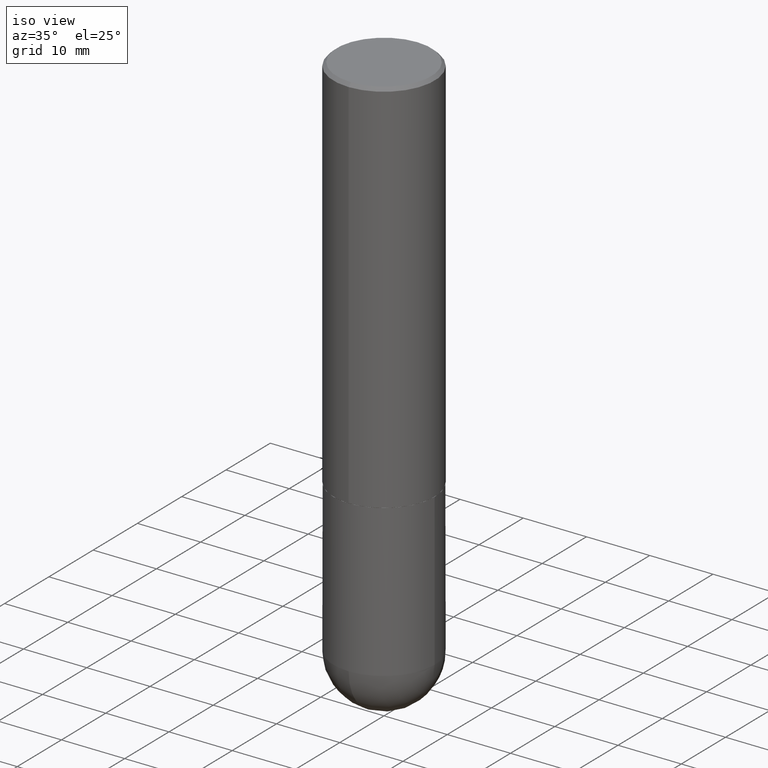
[diagram: clean part render]
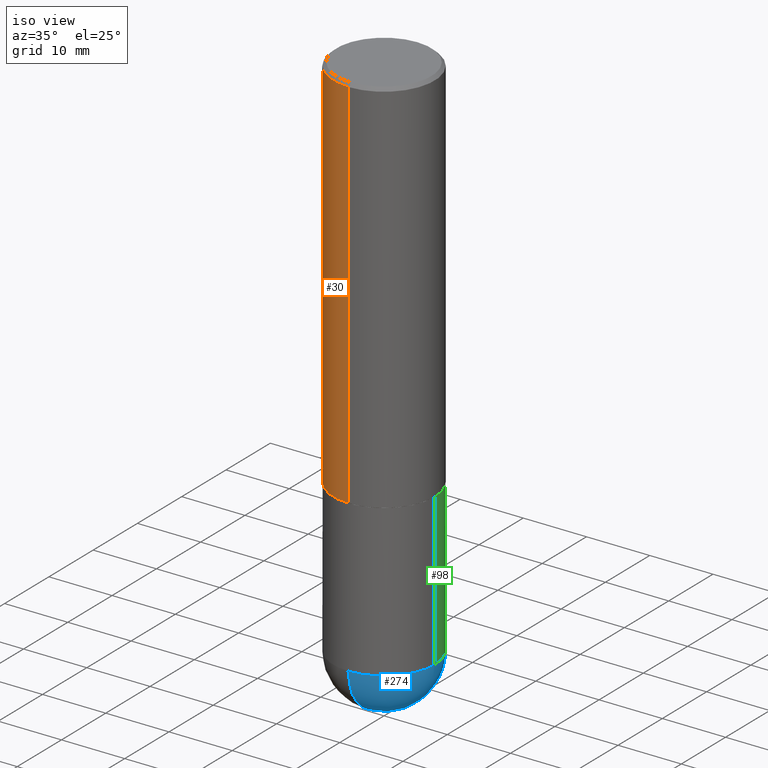
[diagram: same view with three faces highlighted in distinct colors, each labeled with its STEP entity id]
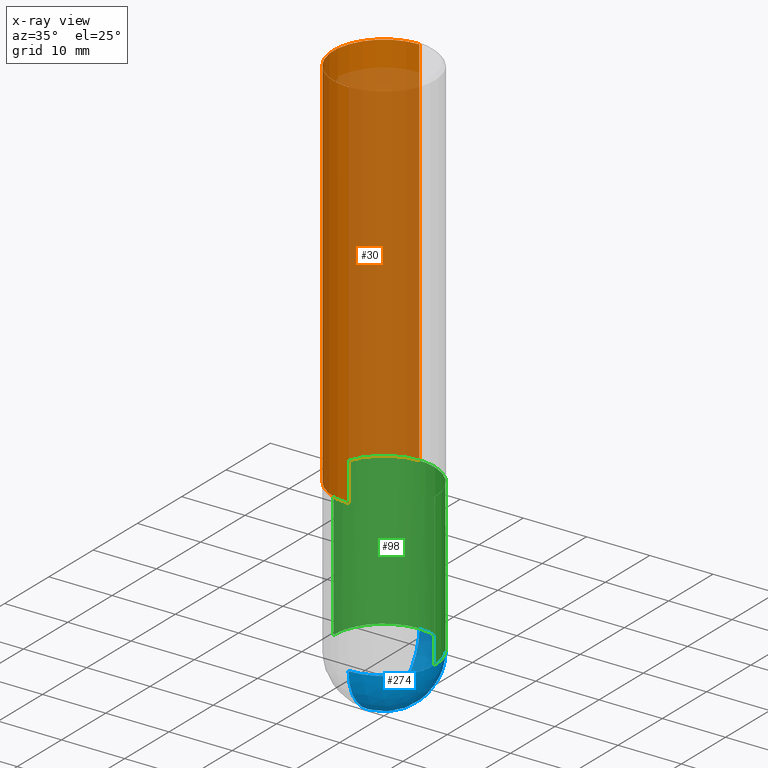
[diagram: x-ray of the same camera — body ghosted, the three highlighted faces saturated]
A machine part, iso view with three faces highlighted in distinct colors.
The next image is the same camera in x-ray (body ghosted, the three faces saturated) — at least one of them is partly hidden behind the body in this view.
Their STEP definitions:

[orange] entity #30 — the highlighted cylindrical surface (partial cylindrical patch) has radius 7.9997 mm, axis along (-0, 0, 1).
#8 = CARTESIAN_POINT ( 'NONE',  ( -2.199284095337290265E-15, -0.3149500000000001743, 1.099513928764781355E-15 ) ) ;
#14 = VERTEX_POINT ( 'NONE', #22 ) ;
#21 = DIRECTION ( 'NONE',  ( -2.445752866996063776E-29, 3.491074547594160525E-15, 1.000000000000000000 ) ) ;
#22 = CARTESIAN_POINT ( 'NONE',  ( -2.160713844398143363E-15, -0.3149500000000000632, -0.01999999999999896999 ) ) ;
#30 = ADVANCED_FACE ( 'NONE', ( #115 ), #253, .T. ) ;
#60 = AXIS2_PLACEMENT_3D ( 'NONE', #246, #354, #79 ) ;
#72 = DIRECTION ( 'NONE',  ( -2.445752866996063776E-29, 3.491074547594160525E-15, 1.000000000000000000 ) ) ;
#79 = DIRECTION ( 'NONE',  ( -6.982962677686264344E-15, -1.000000000000000000, 3.491074547594160130E-15 ) ) ;
#88 = CIRCLE ( 'NONE', #126, 0.3149500000000002853 ) ;
#90 = CARTESIAN_POINT ( 'NONE',  ( -2.199284095337233467E-15, -0.3149500000000085564, -2.361199999999998411 ) ) ;
#96 = VECTOR ( 'NONE', #21, 39.37007874015748143 ) ;
#105 = VECTOR ( 'NONE', #129, 39.37007874015748143 ) ;
#114 = CIRCLE ( 'NONE', #266, 0.3149500000000000077 ) ;
#115 = FACE_OUTER_BOUND ( 'NONE', #312, .T. ) ;
#124 = EDGE_CURVE ( 'NONE', #136, #280, #88, .T. ) ;
#126 = AXIS2_PLACEMENT_3D ( 'NONE', #375, #72, #202 ) ;
#129 = DIRECTION ( 'NONE',  ( -2.445752866996063776E-29, 3.491074547594160525E-15, 1.000000000000000000 ) ) ;
#136 = VERTEX_POINT ( 'NONE', #195 ) ;
#138 = EDGE_CURVE ( 'NONE', #280, #14, #315, .T. ) ;
#171 = ORIENTED_EDGE ( 'NONE', *, *, #335, .F. ) ;
#172 = EDGE_CURVE ( 'NONE', #190, #14, #114, .T. ) ;
#174 = LINE ( 'NONE', #301, #96 ) ;
#188 = ORIENTED_EDGE ( 'NONE', *, *, #172, .F. ) ;
#190 = VERTEX_POINT ( 'NONE', #252 ) ;
#195 = CARTESIAN_POINT ( 'NONE',  ( 2.237854346276465567E-15, 0.3149499999999920141, -2.361200000000000632 ) ) ;
#202 = DIRECTION ( 'NONE',  ( -6.982962677686265922E-15, -1.000000000000000000, 3.469564049740290009E-15 ) ) ;
#205 = DIRECTION ( 'NONE',  ( -2.445752866996063776E-29, 3.491074547594160525E-15, 1.000000000000000000 ) ) ;
#216 = CARTESIAN_POINT ( 'NONE',  ( 4.891505733992145558E-31, -6.982149095188345750E-17, -0.02000000000000007327 ) ) ;
#246 = CARTESIAN_POINT ( 'NONE',  ( 0.000000000000000000, 0.000000000000000000, 0.000000000000000000 ) ) ;
#252 = CARTESIAN_POINT ( 'NONE',  ( 2.199284095337289871E-15, 0.3149499999999999522, -0.02000000000000117309 ) ) ;
#253 = CYLINDRICAL_SURFACE ( 'NONE', #60, 0.3149500000000001743 ) ;
#266 = AXIS2_PLACEMENT_3D ( 'NONE', #216, #205, #299 ) ;
#280 = VERTEX_POINT ( 'NONE', #90 ) ;
#299 = DIRECTION ( 'NONE',  ( -6.982962677686265922E-15, -1.000000000000000000, 3.496670018878889100E-15 ) ) ;
#301 = CARTESIAN_POINT ( 'NONE',  ( 2.237854346276435985E-15, 0.3149500000000001743, -1.099513928764781355E-15 ) ) ;
#312 = EDGE_LOOP ( 'NONE', ( #171, #407, #313, #188 ) ) ;
#313 = ORIENTED_EDGE ( 'NONE', *, *, #138, .T. ) ;
#315 = LINE ( 'NONE', #8, #105 ) ;
#335 = EDGE_CURVE ( 'NONE', #136, #190, #174, .T. ) ;
#354 = DIRECTION ( 'NONE',  ( -2.445752866996063776E-29, 3.491074547594160525E-15, 1.000000000000000000 ) ) ;
#375 = CARTESIAN_POINT ( 'NONE',  ( 5.774911669551105250E-29, -8.243125221779329781E-15, -2.361199999999999743 ) ) ;
#407 = ORIENTED_EDGE ( 'NONE', *, *, #124, .T. ) ;

[blue] entity #274 — the highlighted spherical surface has radius 7.9997 mm.
#4 = DIRECTION ( 'NONE',  ( 1.000000000000000000, -6.982962677686269866E-15, 0.000000000000000000 ) ) ;
#7 = EDGE_CURVE ( 'NONE', #214, #158, #398, .T. ) ;
#17 = AXIS2_PLACEMENT_3D ( 'NONE', #180, #18, #208 ) ;
#18 = DIRECTION ( 'NONE',  ( -1.000000000000000000, 7.105427357601001070E-15, -4.926315508542082329E-29 ) ) ;
#29 = VERTEX_POINT ( 'NONE', #113 ) ;
#34 = DIRECTION ( 'NONE',  ( 1.000000000000000000, -6.982962677686269866E-15, 0.000000000000000000 ) ) ;
#55 = CARTESIAN_POINT ( 'NONE',  ( 8.539834969227531055E-29, -1.310104265196035002E-14, -3.621999999999999886 ) ) ;
#57 = DIRECTION ( 'NONE',  ( -1.000000000000000000, 6.982962677686265133E-15, -4.883557194083112901E-29 ) ) ;
#63 = ORIENTED_EDGE ( 'NONE', *, *, #277, .F. ) ;
#66 = CARTESIAN_POINT ( 'NONE',  ( 8.087287615494557476E-29, -1.154650336162122627E-14, -3.307050000000000267 ) ) ;
#101 = ORIENTED_EDGE ( 'NONE', *, *, #152, .F. ) ;
#107 = CARTESIAN_POINT ( 'NONE',  ( 2.199284095337369546E-15, 0.3149499999999882394, -3.307050000000001599 ) ) ;
#113 = CARTESIAN_POINT ( 'NONE',  ( 0.3149500000000000077, -1.209632438545554361E-14, -3.307050000000000267 ) ) ;
#125 = ORIENTED_EDGE ( 'NONE', *, *, #7, .T. ) ;
#150 = CIRCLE ( 'NONE', #17, 0.3149500000000001743 ) ;
#152 = EDGE_CURVE ( 'NONE', #233, #29, #260, .T. ) ;
#158 = VERTEX_POINT ( 'NONE', #107 ) ;
#162 = CARTESIAN_POINT ( 'NONE',  ( 8.087287615494557476E-29, -1.154650336162122627E-14, -3.307050000000000267 ) ) ;
#165 = CARTESIAN_POINT ( 'NONE',  ( 7.756167837580670108E-29, -1.202068572976127498E-14, -3.307049999999999823 ) ) ;
#170 = DIRECTION ( 'NONE',  ( -2.445468806185136597E-29, 3.491481338843145583E-15, 1.000000000000000000 ) ) ;
#178 = EDGE_CURVE ( 'NONE', #214, #233, #150, .T. ) ;
#180 = CARTESIAN_POINT ( 'NONE',  ( 7.756167837580670108E-29, -1.202068572976127498E-14, -3.307049999999999823 ) ) ;
#186 = CIRCLE ( 'NONE', #309, 0.3149500000000000077 ) ;
#208 = DIRECTION ( 'NONE',  ( -7.105427357600999492E-15, -1.000000000000000000, 0.000000000000000000 ) ) ;
#210 = AXIS2_PLACEMENT_3D ( 'NONE', #66, #170, #34 ) ;
#214 = VERTEX_POINT ( 'NONE', #55 ) ;
#225 = CARTESIAN_POINT ( 'NONE',  ( -2.237854346276355915E-15, -0.3149500000000118871, -3.307049999999999379 ) ) ;
#233 = VERTEX_POINT ( 'NONE', #225 ) ;
#260 = CIRCLE ( 'NONE', #210, 0.3149500000000000077 ) ;
#268 = EDGE_LOOP ( 'NONE', ( #342, #125, #63, #101 ) ) ;
#274 = ADVANCED_FACE ( 'NONE', ( #371 ), #340, .T. ) ;
#276 = DIRECTION ( 'NONE',  ( 1.000000000000000000, -6.982962677686265922E-15, 4.883557194083112340E-29 ) ) ;
#277 = EDGE_CURVE ( 'NONE', #29, #158, #186, .T. ) ;
#297 = AXIS2_PLACEMENT_3D ( 'NONE', #395, #276, #328 ) ;
#309 = AXIS2_PLACEMENT_3D ( 'NONE', #162, #343, #4 ) ;
#328 = DIRECTION ( 'NONE',  ( 6.982962677686264344E-15, 1.000000000000000000, 0.000000000000000000 ) ) ;
#340 = SPHERICAL_SURFACE ( 'NONE', #355, 0.3149500000000001743 ) ;
#342 = ORIENTED_EDGE ( 'NONE', *, *, #178, .F. ) ;
#343 = DIRECTION ( 'NONE',  ( -2.445468806185136597E-29, 3.491481338843145583E-15, 1.000000000000000000 ) ) ;
#355 = AXIS2_PLACEMENT_3D ( 'NONE', #165, #57, #380 ) ;
#371 = FACE_OUTER_BOUND ( 'NONE', #268, .T. ) ;
#380 = DIRECTION ( 'NONE',  ( 6.982962677686265133E-15, 1.000000000000000000, -3.469564049740291586E-15 ) ) ;
#395 = CARTESIAN_POINT ( 'NONE',  ( 7.756167837580670108E-29, -1.202068572976127498E-14, -3.307049999999999823 ) ) ;
#398 = CIRCLE ( 'NONE', #297, 0.3149500000000001743 ) ;

[green] entity #98 — the highlighted cylindrical surface (partial cylindrical patch) has radius 7.9997 mm, axis along (-0, 0, 1).
#2 = ORIENTED_EDGE ( 'NONE', *, *, #191, .F. ) ;
#4 = DIRECTION ( 'NONE',  ( 1.000000000000000000, -6.982962677686269866E-15, 0.000000000000000000 ) ) ;
#5 = EDGE_CURVE ( 'NONE', #285, #362, #358, .T. ) ;
#29 = VERTEX_POINT ( 'NONE', #113 ) ;
#33 = ORIENTED_EDGE ( 'NONE', *, *, #223, .T. ) ;
#43 = CARTESIAN_POINT ( 'NONE',  ( 0.3149500000000000077, -2.199284095337289871E-15, 1.535751875536930130E-29 ) ) ;
#44 = CIRCLE ( 'NONE', #86, 0.3149500000000000077 ) ;
#45 = CARTESIAN_POINT ( 'NONE',  ( 0.3149500000000000077, -1.044686131395256792E-14, -2.362199999999999633 ) ) ;
#46 = CARTESIAN_POINT ( 'NONE',  ( -0.3149500000000000077, 2.237854346276435590E-15, -1.549218606675782676E-29 ) ) ;
#49 = DIRECTION ( 'NONE',  ( -2.445468806185136877E-29, 3.491481338843145188E-15, 1.000000000000000000 ) ) ;
#51 = CYLINDRICAL_SURFACE ( 'NONE', #95, 0.3149500000000000077 ) ;
#52 = CIRCLE ( 'NONE', #298, 0.3149500000000000077 ) ;
#56 = VECTOR ( 'NONE', #397, 39.37007874015748143 ) ;
#84 = VECTOR ( 'NONE', #49, 39.37007874015748143 ) ;
#86 = AXIS2_PLACEMENT_3D ( 'NONE', #352, #295, #100 ) ;
#87 = CARTESIAN_POINT ( 'NONE',  ( 8.087287615494557476E-29, -1.154650336162122627E-14, -3.307050000000000267 ) ) ;
#93 = ORIENTED_EDGE ( 'NONE', *, *, #277, .T. ) ;
#95 = AXIS2_PLACEMENT_3D ( 'NONE', #182, #257, #116 ) ;
#98 = ADVANCED_FACE ( 'NONE', ( #332 ), #51, .T. ) ;
#100 = DIRECTION ( 'NONE',  ( 1.000000000000000000, -6.982962677686266711E-15, 0.000000000000000000 ) ) ;
#107 = CARTESIAN_POINT ( 'NONE',  ( 2.199284095337369546E-15, 0.3149499999999882394, -3.307050000000001599 ) ) ;
#111 = EDGE_LOOP ( 'NONE', ( #33, #159, #286, #2, #93 ) ) ;
#113 = CARTESIAN_POINT ( 'NONE',  ( 0.3149500000000000077, -1.209632438545554361E-14, -3.307050000000000267 ) ) ;
#116 = DIRECTION ( 'NONE',  ( 1.000000000000000000, -6.982962677686266711E-15, 4.876176775795936353E-29 ) ) ;
#158 = VERTEX_POINT ( 'NONE', #107 ) ;
#159 = ORIENTED_EDGE ( 'NONE', *, *, #5, .T. ) ;
#162 = CARTESIAN_POINT ( 'NONE',  ( 8.087287615494557476E-29, -1.154650336162122627E-14, -3.307050000000000267 ) ) ;
#182 = CARTESIAN_POINT ( 'NONE',  ( 0.000000000000000000, 0.000000000000000000, 0.000000000000000000 ) ) ;
#185 = DIRECTION ( 'NONE',  ( 1.000000000000000000, -6.982962677686269866E-15, 0.000000000000000000 ) ) ;
#186 = CIRCLE ( 'NONE', #309, 0.3149500000000000077 ) ;
#191 = EDGE_CURVE ( 'NONE', #29, #318, #275, .T. ) ;
#219 = DIRECTION ( 'NONE',  ( -2.445468806185136597E-29, 3.491481338843145583E-15, 1.000000000000000000 ) ) ;
#223 = EDGE_CURVE ( 'NONE', #158, #285, #52, .T. ) ;
#243 = CARTESIAN_POINT ( 'NONE',  ( -0.3149500000000000077, -7.659185943841816172E-15, -2.362199999999999633 ) ) ;
#257 = DIRECTION ( 'NONE',  ( -2.445468806185136597E-29, 3.491481338843145583E-15, 1.000000000000000000 ) ) ;
#262 = CARTESIAN_POINT ( 'NONE',  ( -0.3149500000000000077, -7.659185943841817750E-15, -3.307050000000000267 ) ) ;
#275 = LINE ( 'NONE', #43, #56 ) ;
#277 = EDGE_CURVE ( 'NONE', #29, #158, #186, .T. ) ;
#285 = VERTEX_POINT ( 'NONE', #262 ) ;
#286 = ORIENTED_EDGE ( 'NONE', *, *, #314, .F. ) ;
#295 = DIRECTION ( 'NONE',  ( -2.445468806185136597E-29, 3.491481338843145583E-15, 1.000000000000000000 ) ) ;
#298 = AXIS2_PLACEMENT_3D ( 'NONE', #87, #219, #185 ) ;
#309 = AXIS2_PLACEMENT_3D ( 'NONE', #162, #343, #4 ) ;
#314 = EDGE_CURVE ( 'NONE', #318, #362, #44, .T. ) ;
#318 = VERTEX_POINT ( 'NONE', #45 ) ;
#332 = FACE_OUTER_BOUND ( 'NONE', #111, .T. ) ;
#343 = DIRECTION ( 'NONE',  ( -2.445468806185136597E-29, 3.491481338843145583E-15, 1.000000000000000000 ) ) ;
#352 = CARTESIAN_POINT ( 'NONE',  ( 5.776686413970529753E-29, -8.247577218615278049E-15, -2.362199999999999633 ) ) ;
#358 = LINE ( 'NONE', #46, #84 ) ;
#362 = VERTEX_POINT ( 'NONE', #243 ) ;
#397 = DIRECTION ( 'NONE',  ( -2.445468806185136877E-29, 3.491481338843145188E-15, 1.000000000000000000 ) ) ;